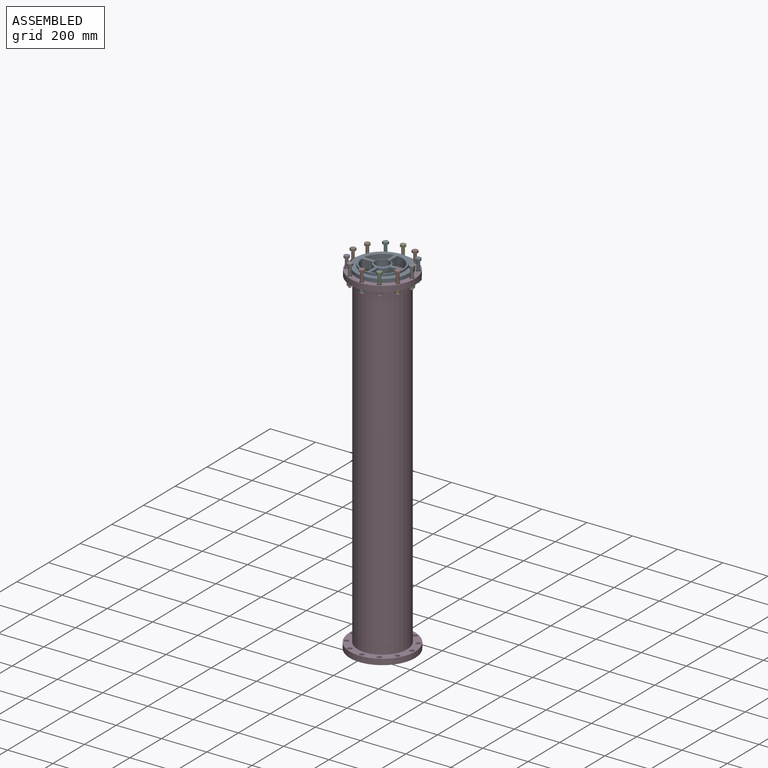
[diagram: assembled view]
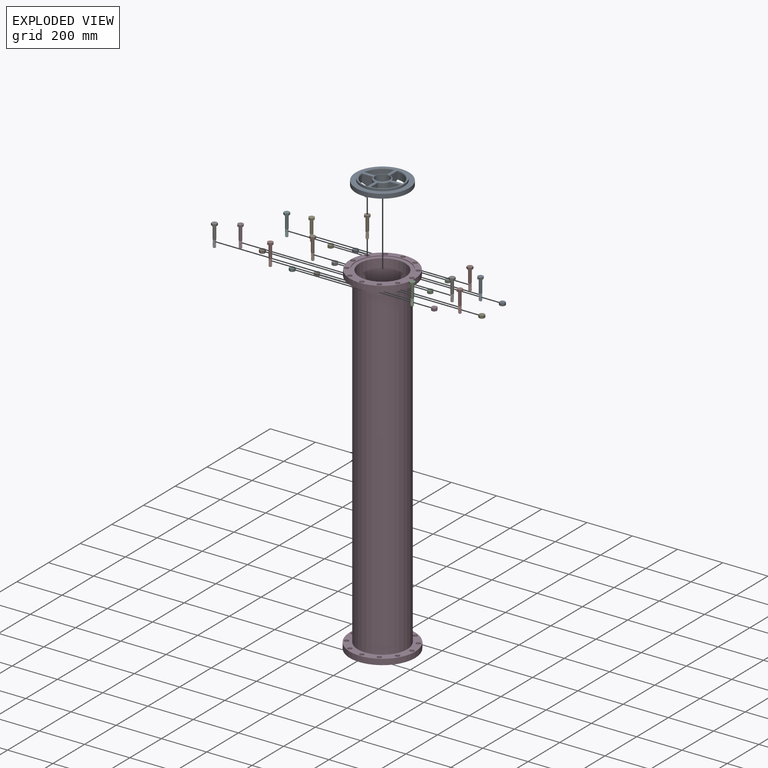
[diagram: exploded view]
GUIDED TOUR — MATED ASSEMBLY (Onshape document aa5c15873a83f293e7da7a4d, AutoMate assembly aa5c15873a83f293e7da7a4d_e7425b5f8948b6b6c07247ae_86c47e28485bf831e5494902_default)

This assembly has 26 components, labeled P0..P25 below (a component is one placed occurrence of a part; the same part can appear more than once), held together by 3 mates. A mate is a constraint between two components; its type names the relative motion it leaves free:
  FASTENED — locks the two components together rigidly (no relative motion).
Axis/direction vectors are unit vectors and 'through' points are millimeter coordinates, both in the assembly's world frame.

MATES
  1. FASTENED "Fastened 2": P13 <-> P3, direction (0.000, 0.000, 1.000) through (367.77, -26.21, 178.77) mm
  2. FASTENED "Fastened 1": P24 <-> P3, direction (0.000, 0.000, -1.000) through (480.50, -91.29, 201.00) mm
  3. FASTENED "Fastened 3": P9 <-> P3, direction (0.000, 0.000, -1.000) through (367.77, -26.21, 245.45) mm

ASSEMBLY ORDER
  1. P24 — the base component [order verified]
  2. P3 [order verified]
  3. P8 [order verified]
  4. P16 [order verified]
  5. P19 [order verified]
  6. P17 [order verified]
  7. P9 [order verified]
  8. P13 [order verified]
  9. P7 [order verified]
  10. P20 [order verified]
  11. P10 [order verified]
  12. P11 [order verified]
  13. P21 [order verified]
  14. P4 [order verified]
  15. P22 [order verified]
  16. P1 [order verified]
  17. P23 [order verified]
  18. P18 [order verified]
  19. P14 [order verified]
  20. P25 [order verified]
  21. P2 [order verified]
  22. P6 [order verified]
  23. P5 [order verified]
  24. P15 [order verified]
  25. P0 [order verified]
  26. P12 [order verified]
(P1, P4, P6, P11, P12, P13, P15, P16, P17, P18, P20, P25 verified with a relaxed clearance tolerance: the source model stores slight part interference there.)
Order-tag legend:
  [order verified] — this step's position reverses a verified removal order: the component was checked to insert without passing through the ones already placed.

Of the 26 components, 1 carries the full construction recipe — the FeatureScript program that regenerates the part's solid from scratch; the rest are supplied as boundary geometry only.
Because this assembly has more than 12 components, the tour below covers the 12 most significant ones individually (every recipe-attached component first, then the largest by part volume), in assembly order; the remaining 14 are summarized together in a grouped section at the end.
Each toured component is shown spotlighted twice — in the assembled view, then in the exploded view, where a leader line traces a displaced component back to its assembled socket (saturated green if recipe-attached, orange if geometry-only; every other component desaturated gray) — followed by its recipe or geometry summary and the mates that hold it.
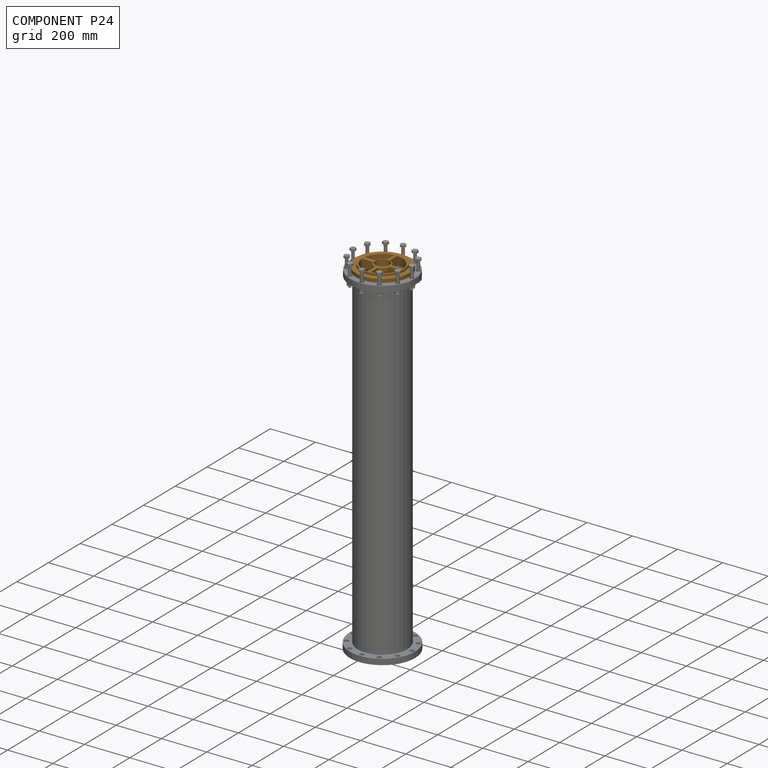
[diagram: component P24 — assembled]
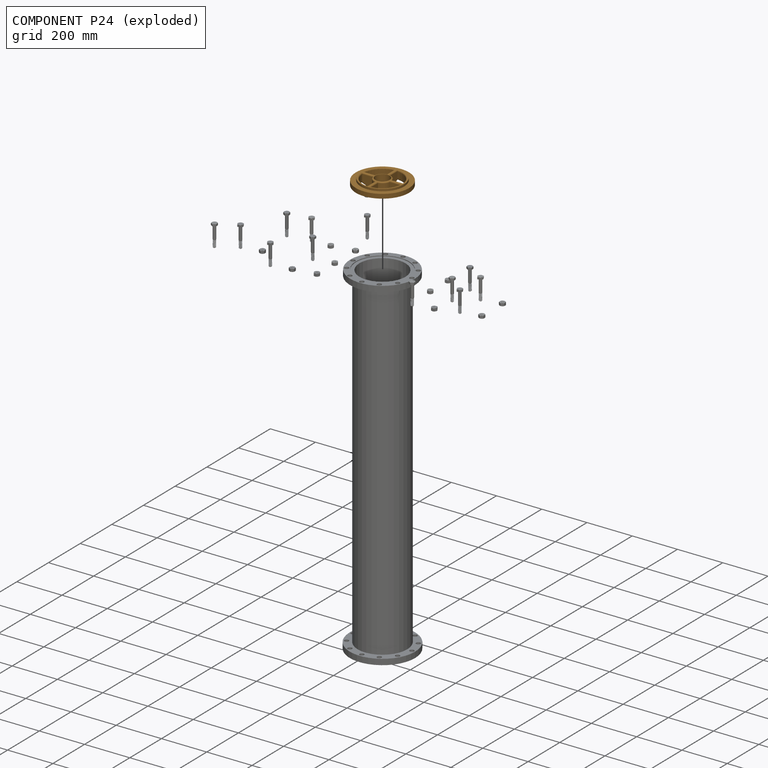
[diagram: component P24 — exploded]
COMPONENT P24 — geometry summary (no construction recipe available for this part):
  bounding box: 238.2 x 238.2 x 66.9 mm
  B-rep topology: 1 solid, 68 faces, 330 edges
  volume: 696616 mm^3 (18% of its bounding box)
  symmetry: 4-fold rotationally symmetric about the x axis; mirror-symmetric across its y mid-plane, z mid-plane
Held by: FASTENED mate "Fastened 1" to P3.
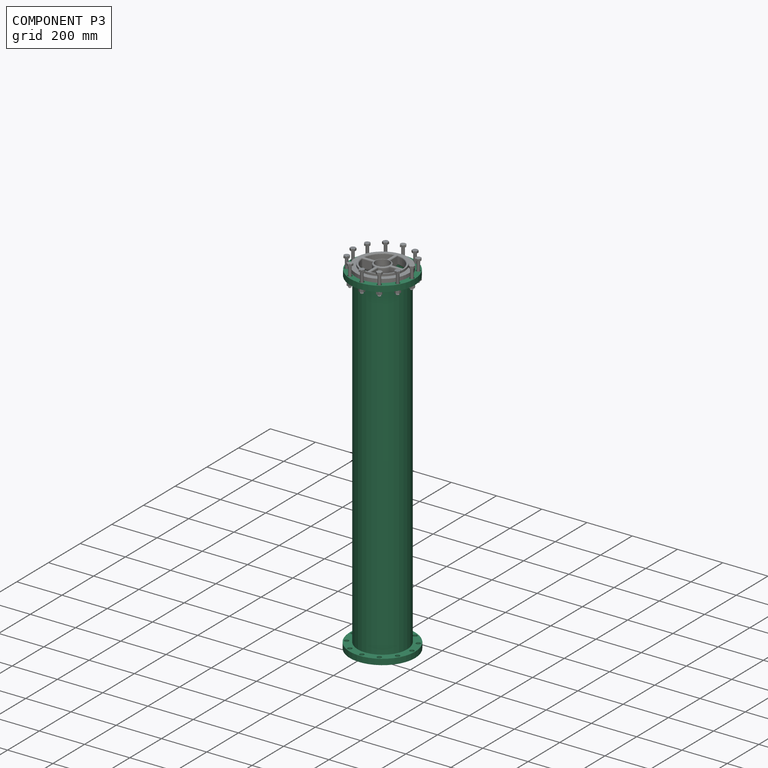
[diagram: component P3 — assembled]
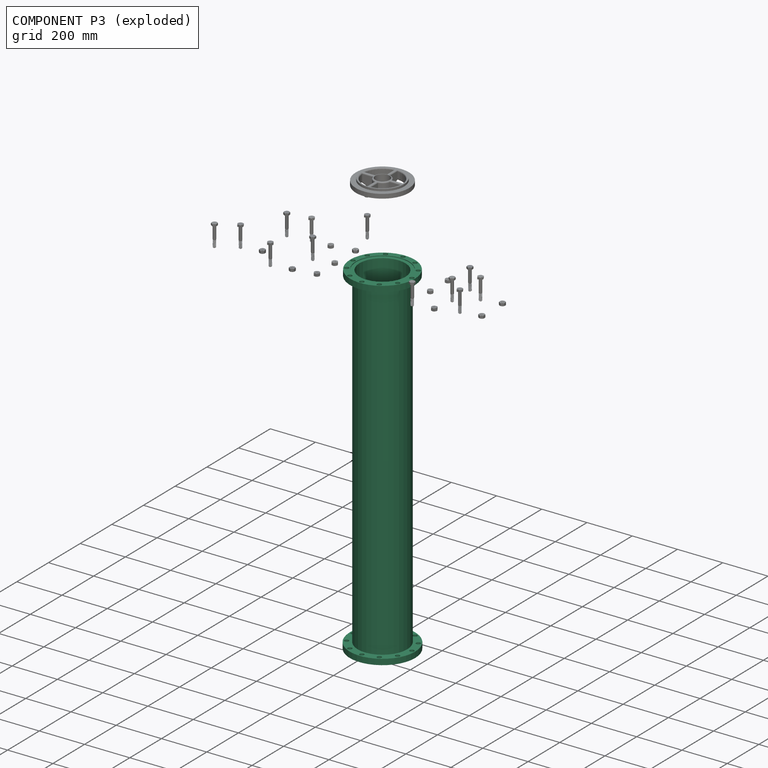
[diagram: component P3 — exploded]
COMPONENT P3 — recipe-attached (CADFS 00617229, mesh-verified: the recipe's output STEP matches this component's geometry to below the mesh-comparison resolution (tessellation chordal tolerance ~2.35 mm)).
Held by: FASTENED mate "Fastened 2" to P13; FASTENED mate "Fastened 1" to P24; FASTENED mate "Fastened 3" to P9.
Construction recipe (FeatureScript — the CAD program that rebuilds this solid; sketch coordinates are in the units given by the * unit suffixes, e.g. mm):

FeatureScript 2155;
import(path : "onshape/std/geometry.fs", version : "2155.0");
import(path : "onshape/std/common.fs", version : "2155.0");
const mm = millimeter;
const VERTEX = EntityType.VERTEX;
const EDGE = EntityType.EDGE;
const FACE = EntityType.FACE;
const BODY = EntityType.BODY;
function v(x, y){return vector(x, y);}
function OD(order){return orderDisambiguation(order);}
function OSD(set){return originalSetDisambiguation(set);}
function TD(topology){return topologyDisambiguation(topology);}
function TDD(query){return trueDependencyDisambiguation(query);}
function sQuery(a, b, c) {return sketchEntityQuery(a, b, c);}

annotation { "Feature Type Name" : "Feature", "Feature Type Description" : "" }
export const myFeature = defineFeature(function(context is Context, id is Id, definition is map)
    precondition{}
    {
        {
            var Q0;
            Q0=qCreatedBy(makeId("Front.planeOp"),FACE);
            var sketch = newSketch(context, id + "F0", { "sketchPlane" : qUnion([Q0])});
            skLineSegment(sketch, "E0", {"start": v(109.6, 0) * mm, "end": v(142.88, 0) * mm});
            skLineSegment(sketch, "E1", {"start": v(142.88, 0) * mm, "end": v(142.88, 25.4) * mm});
            skLineSegment(sketch, "E2", {"start": v(117.48, 25.4) * mm, "end": v(117.48, 22.23) * mm});
            skLineSegment(sketch, "E3", {"start": v(117.48, 22.22) * mm, "end": v(101.6, 22.22) * mm});
            skLineSegment(sketch, "E4", {"start": v(101.6, 22.22) * mm, "end": v(101.6, 15.88) * mm});
            skLineSegment(sketch, "E5", {"start": v(117.48, 25.4) * mm, "end": v(142.88, 25.4) * mm});
            skLineSegment(sketch, "E6.trimOffspring", {"start": v(101.6, 22.23) * mm, "end": v(101.6, 15.88) * mm});
            skLineSegment(sketch, "E7", {"start": v(101.6, 15.88) * mm, "end": v(109.6, 15.88) * mm});
            skLineSegment(sketch, "E8", {"start": v(109.6, 15.88) * mm, "end": v(109.6, 0) * mm});
            skPoint(sketch, "E9.endSnap0", {"position": v(101.6, 19.05) * mm});
            skLineSegment(sketch, "E10.MirrorCS", {"start": v(119.13, -1489.08) * mm, "end": v(119.13, -1485.9) * mm});
            skLineSegment(sketch, "E11.MirrorCS", {"start": v(101.6, -1485.9) * mm, "end": v(101.6, -1479.55) * mm});
            skPoint(sketch, "E12.MirrorP", {"position": v(101.6, -1482.73) * mm});
            skLineSegment(sketch, "E13.MirrorCS", {"start": v(101.6, -1479.55) * mm, "end": v(109.6, -1479.55) * mm});
            skPoint(sketch, "E14.MirrorP", {"position": v(101.6, -1489.08) * mm});
            skLineSegment(sketch, "E15.MirrorCS", {"start": v(119.13, -1489.08) * mm, "end": v(144.53, -1489.08) * mm});
            skLineSegment(sketch, "E16.MirrorCS", {"start": v(119.13, -1485.9) * mm, "end": v(101.6, -1485.9) * mm});
            skLineSegment(sketch, "E17.MirrorCS", {"start": v(109.6, -1463.68) * mm, "end": v(144.53, -1463.68) * mm});
            skLineSegment(sketch, "E18.MirrorCS", {"start": v(109.6, -1479.55) * mm, "end": v(109.6, -1463.68) * mm});
            skLineSegment(sketch, "E19.MirrorCS", {"start": v(144.53, -1463.68) * mm, "end": v(144.53, -1489.08) * mm});
            skLineSegment(sketch, "E20.left", {"start": v(101.6, 15.87) * mm, "end": v(101.6, -1479.55) * mm});
            skLineSegment(sketch, "E20.right", {"start": v(109.6, 15.87) * mm, "end": v(109.6, -1479.55) * mm});
            skLineSegment(sketch, "E21", {"start": v(0, 68.5) * mm, "end": v(0, -49) * mm, "construction": true});
            skSolve(sketch);
        }
        {
            var Q0;
            Q0 = qSketchRegion(id + "F0", true);
            var Q1;
            Q1=sQuery(id+"F0.wireOp",EDGE,"E21");
            revolve(context, id + "F1", {"entities" : qUnion([Q0]), "axis" : qUnion([Q1]), "revolveType" : RevolveType.FULL});
        }
        {
            var Q0;
            Q0=makeQuery(id+"F1.opRevolve","SWEPT_FACE",FACE,{"disambiguationData":[OSD([sQuery(id+"F0.wireOp",EDGE,"E5")])]});
            var sketch = newSketch(context, id + "F2", { "sketchPlane" : qUnion([Q0])});
            skCircle(sketch, "E22", {"center": v(130.18, 0) * mm, "radius": 9.53 * mm});
            skCircle(sketch, "E23.1.0", {"center": v(112.73, 65.09) * mm, "radius": 9.53 * mm});
            skCircle(sketch, "E23.2.0", {"center": v(65.09, 112.73) * mm, "radius": 9.53 * mm});
            skCircle(sketch, "E23.3.0", {"center": v(0, 130.18) * mm, "radius": 9.53 * mm});
            skCircle(sketch, "E23.4.0", {"center": v(-65.09, 112.73) * mm, "radius": 9.53 * mm});
            skCircle(sketch, "E23.5.0", {"center": v(-112.73, 65.09) * mm, "radius": 9.53 * mm});
            skCircle(sketch, "E23.6.0", {"center": v(-130.18, 0) * mm, "radius": 9.53 * mm});
            skCircle(sketch, "E23.7.0", {"center": v(-112.73, -65.09) * mm, "radius": 9.53 * mm});
            skCircle(sketch, "E23.8.0", {"center": v(-65.09, -112.73) * mm, "radius": 9.53 * mm});
            skCircle(sketch, "E23.9.0", {"center": v(0, -130.18) * mm, "radius": 9.53 * mm});
            skCircle(sketch, "E23.10.0", {"center": v(65.09, -112.73) * mm, "radius": 9.53 * mm});
            skCircle(sketch, "E23.11.0", {"center": v(112.73, -65.09) * mm, "radius": 9.53 * mm});
            skPoint(sketch, "E23.center", {"position": v(0, 0) * mm});
            skSolve(sketch);
        }
        {
            var Q0;
            Q0 = qSketchRegion(id + "F2", true);
            extrude(context, id + "F3", {"entities" : qUnion([Q0]), "operationType" : NewBodyOperationType.REMOVE, "endBound" : BoundingType.THROUGH_ALL, "oppositeDirection" : true, "depth" : 25.4 * mm, "offsetDistance" : 25.4 * mm});
        }
    });
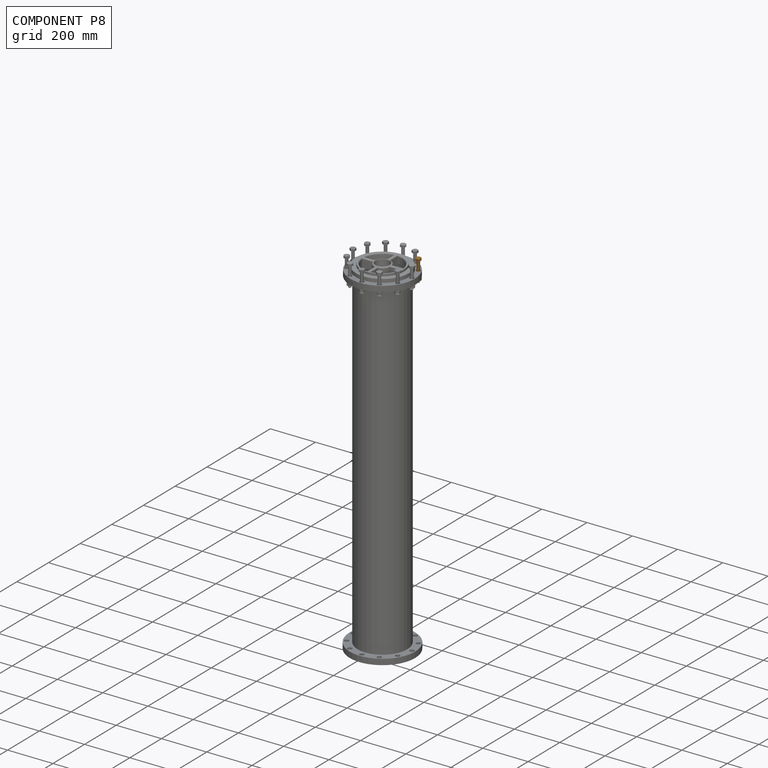
[diagram: component P8 — assembled]
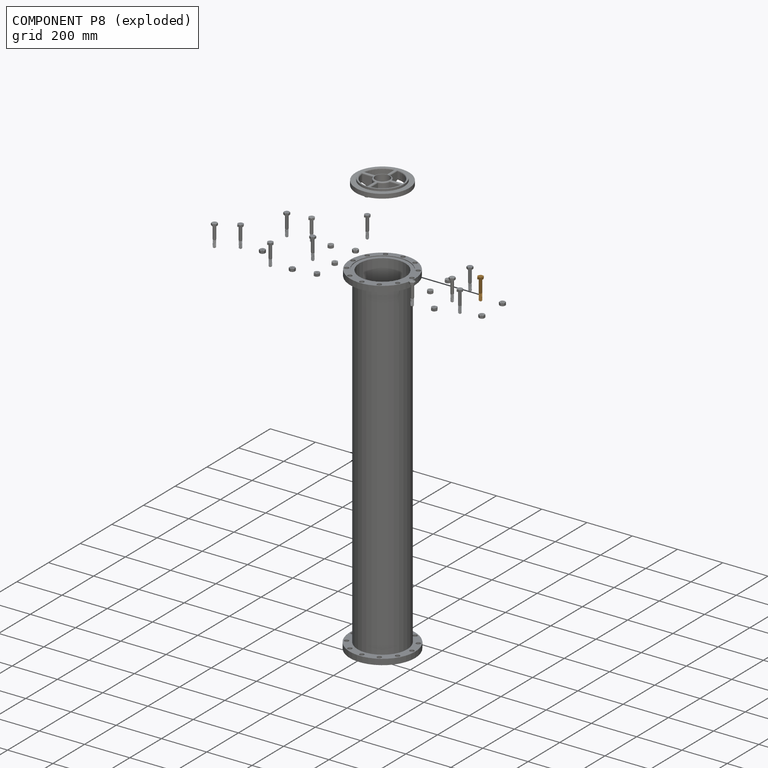
[diagram: component P8 — exploded]
COMPONENT P8 — geometry summary (no construction recipe available for this part):
  bounding box: 98.2 x 25.7 x 25.7 mm
  B-rep topology: 1 solid, 26 faces, 126 edges
  volume: 14707 mm^3 (23% of its bounding box)
  symmetry: 6-fold rotationally symmetric about the z axis
Held by: no mates (free).
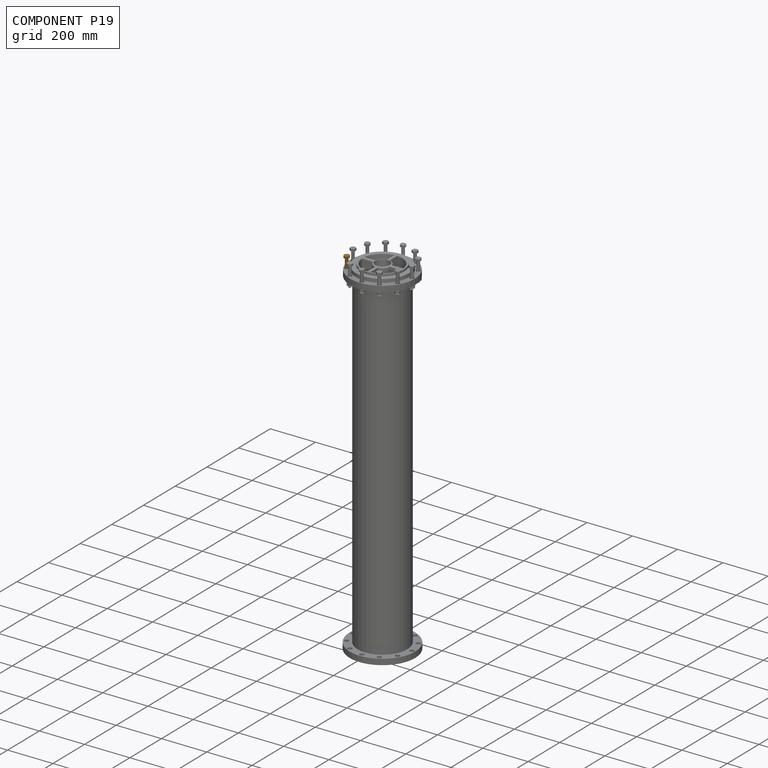
[diagram: component P19 — assembled]
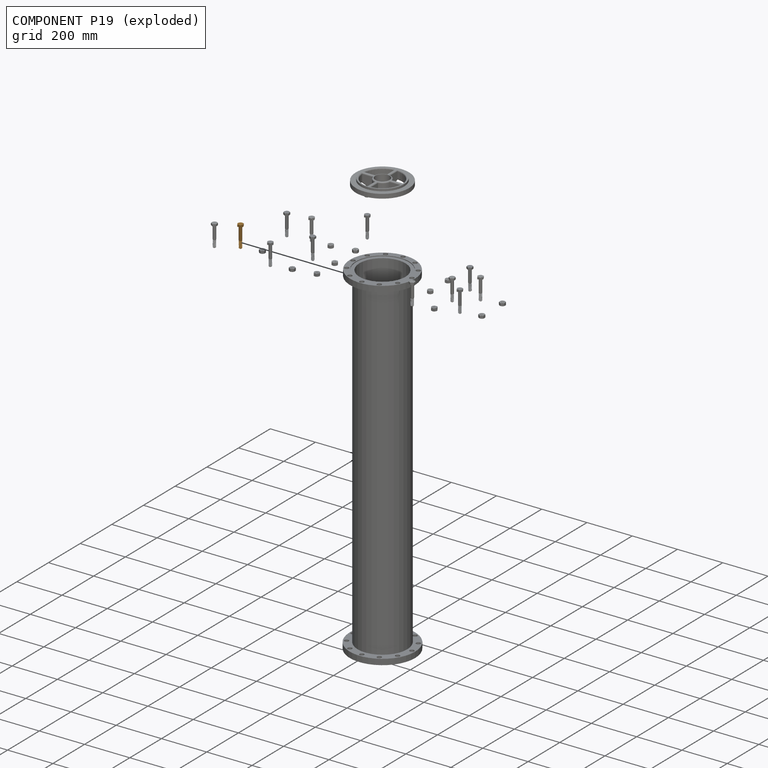
[diagram: component P19 — exploded]
COMPONENT P19 — geometry summary (no construction recipe available for this part):
  bounding box: 98.2 x 25.7 x 25.7 mm
  B-rep topology: 1 solid, 26 faces, 126 edges
  volume: 14707 mm^3 (23% of its bounding box)
  symmetry: 6-fold rotationally symmetric about the z axis
Held by: no mates (free).
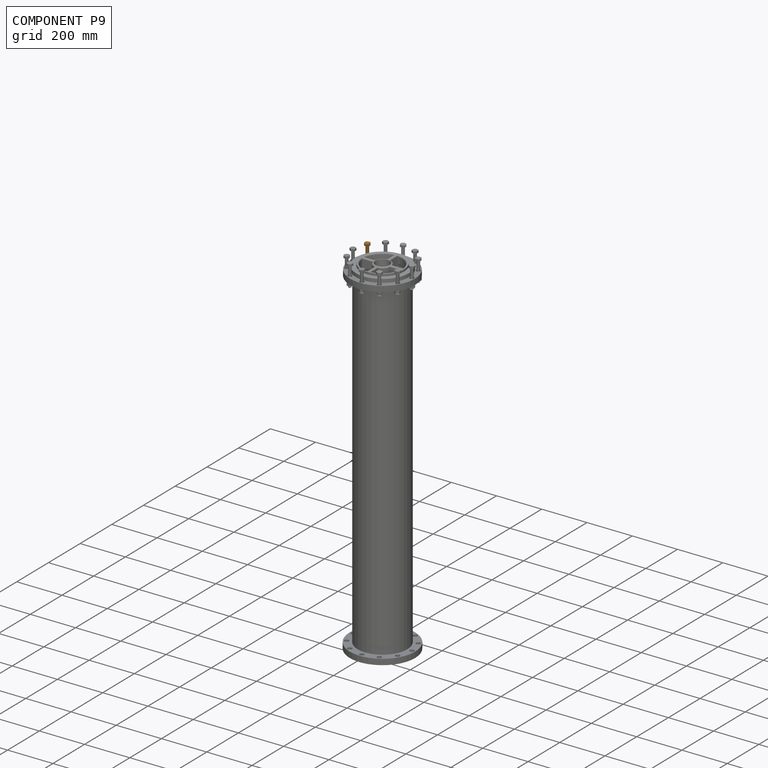
[diagram: component P9 — assembled]
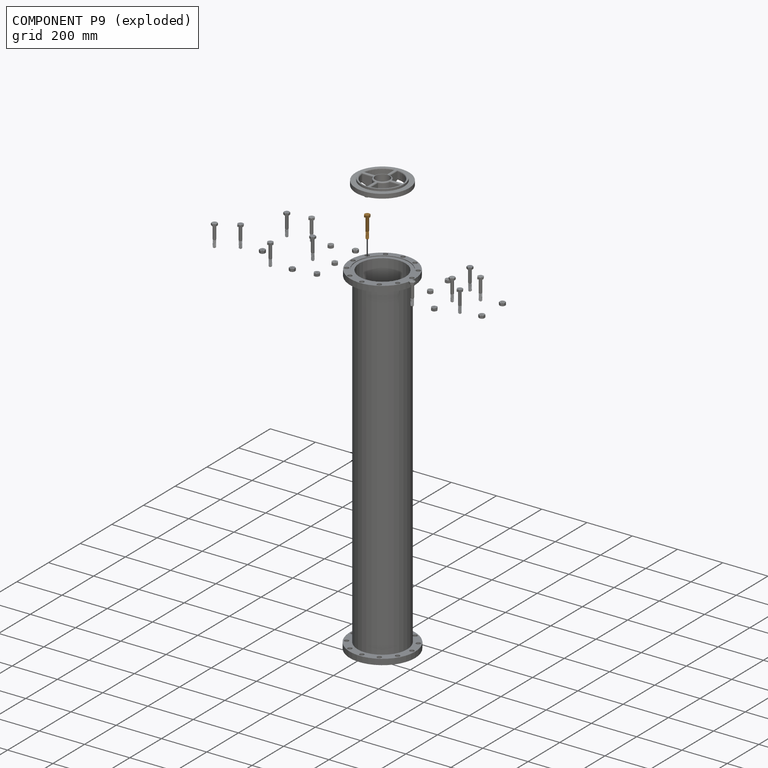
[diagram: component P9 — exploded]
COMPONENT P9 — geometry summary (no construction recipe available for this part):
  bounding box: 98.2 x 25.7 x 25.7 mm
  B-rep topology: 1 solid, 26 faces, 126 edges
  volume: 14707 mm^3 (23% of its bounding box)
  symmetry: 6-fold rotationally symmetric about the z axis
Held by: FASTENED mate "Fastened 3" to P3.
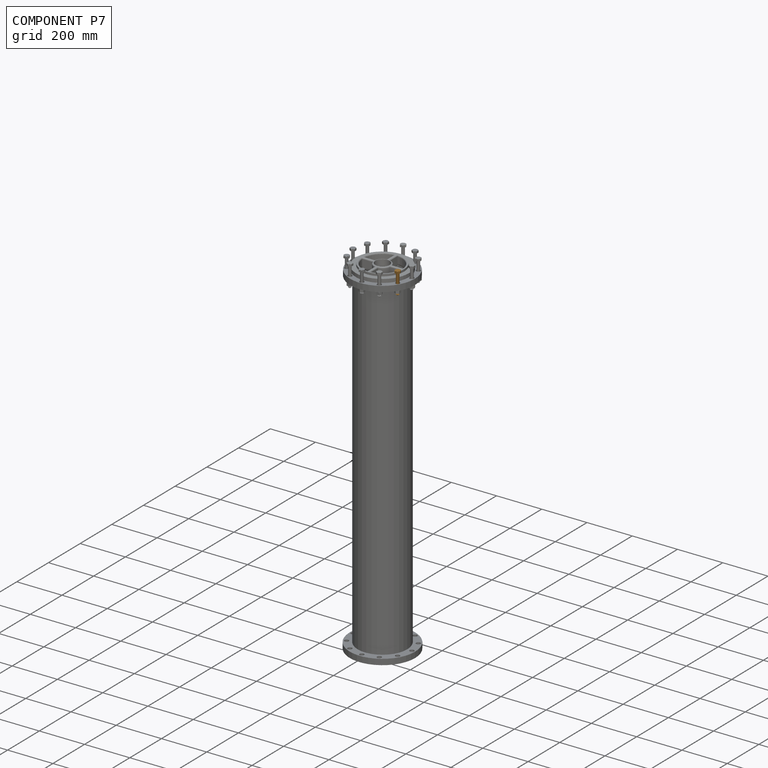
[diagram: component P7 — assembled]
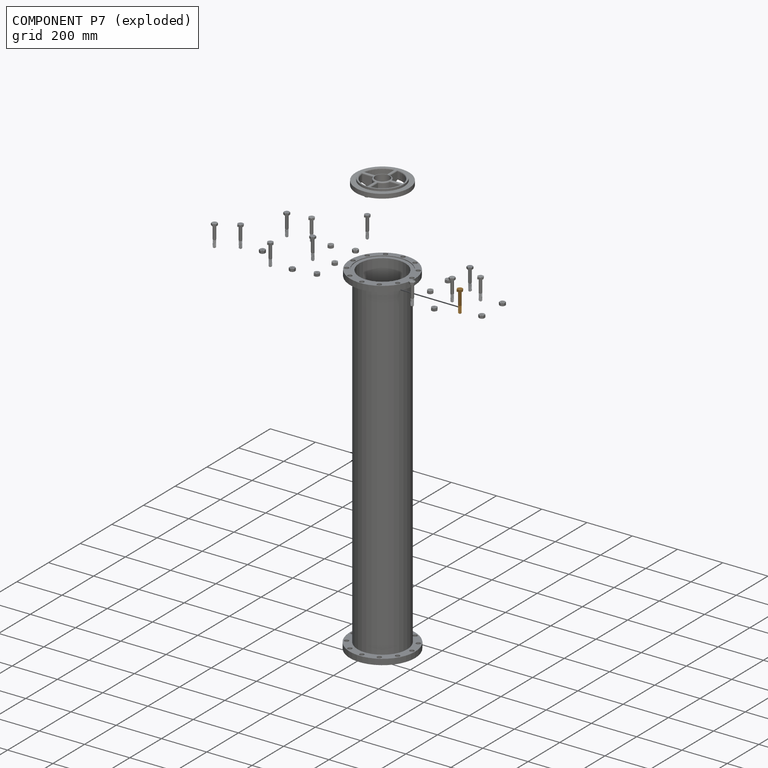
[diagram: component P7 — exploded]
COMPONENT P7 — geometry summary (no construction recipe available for this part):
  bounding box: 98.2 x 25.7 x 25.7 mm
  B-rep topology: 1 solid, 26 faces, 126 edges
  volume: 14707 mm^3 (23% of its bounding box)
  symmetry: 6-fold rotationally symmetric about the z axis
Held by: no mates (free).
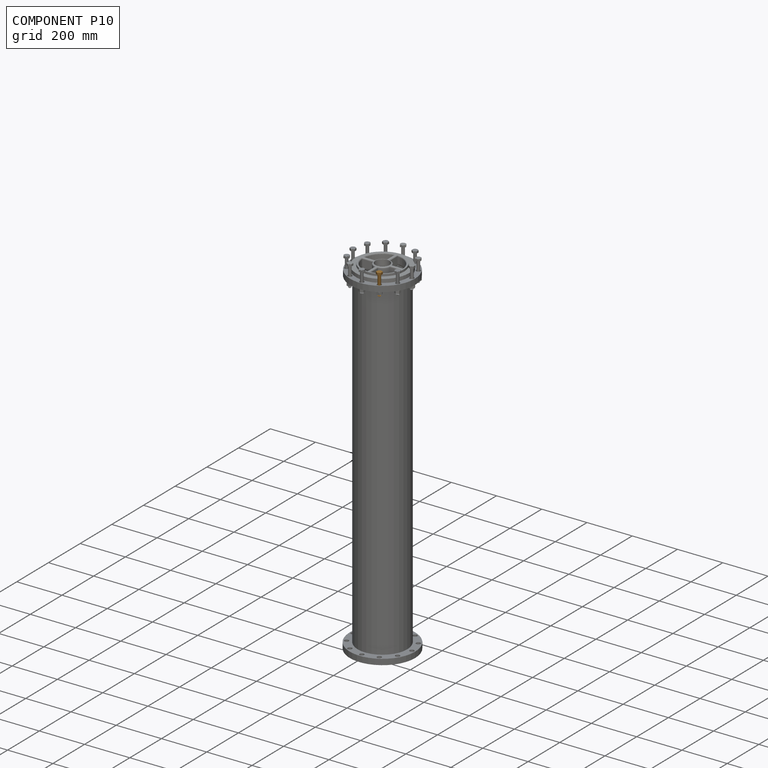
[diagram: component P10 — assembled]
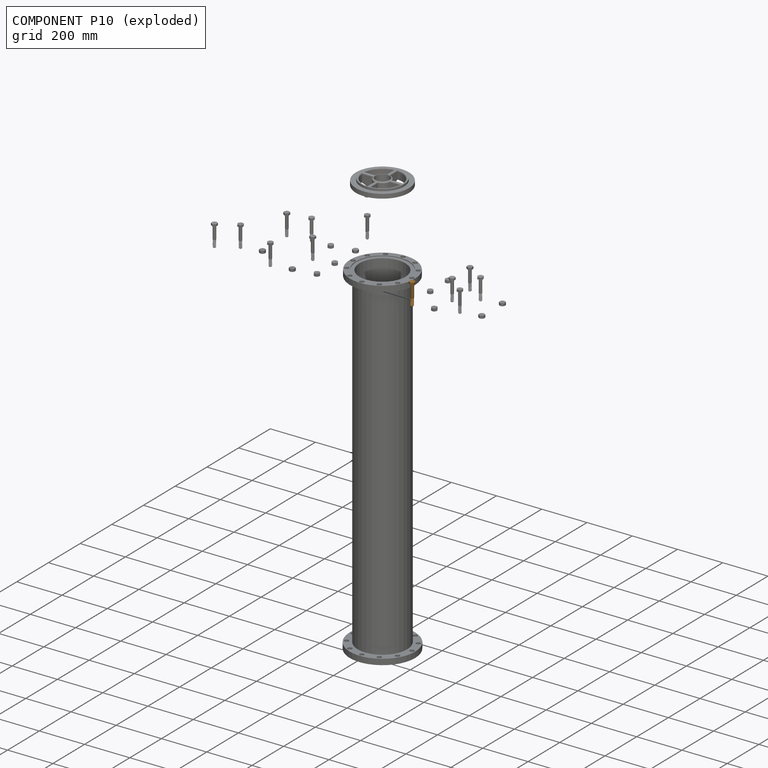
[diagram: component P10 — exploded]
COMPONENT P10 — geometry summary (no construction recipe available for this part):
  bounding box: 98.2 x 25.7 x 25.7 mm
  B-rep topology: 1 solid, 26 faces, 126 edges
  volume: 14707 mm^3 (23% of its bounding box)
  symmetry: 6-fold rotationally symmetric about the z axis
Held by: no mates (free).
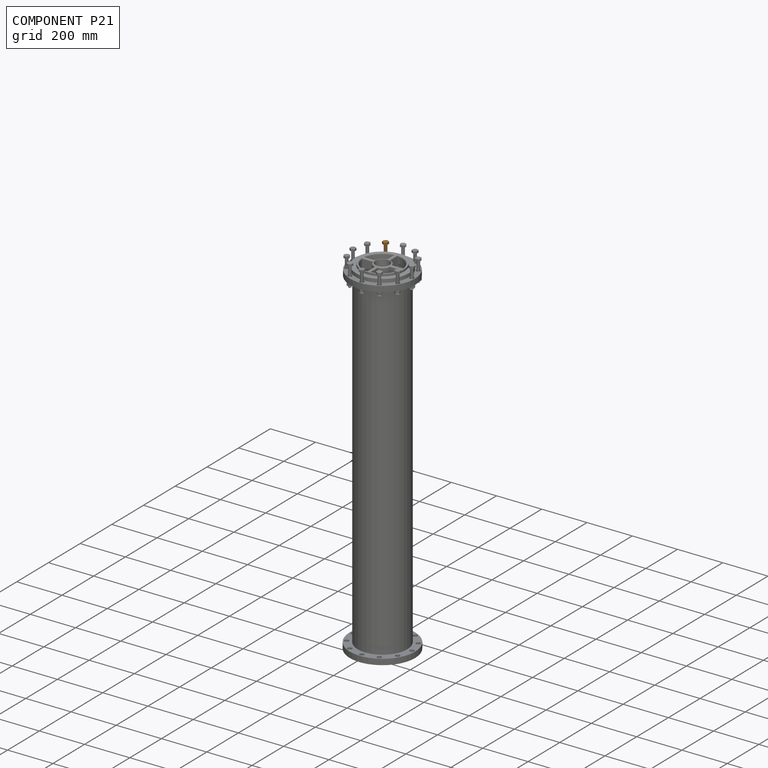
[diagram: component P21 — assembled]
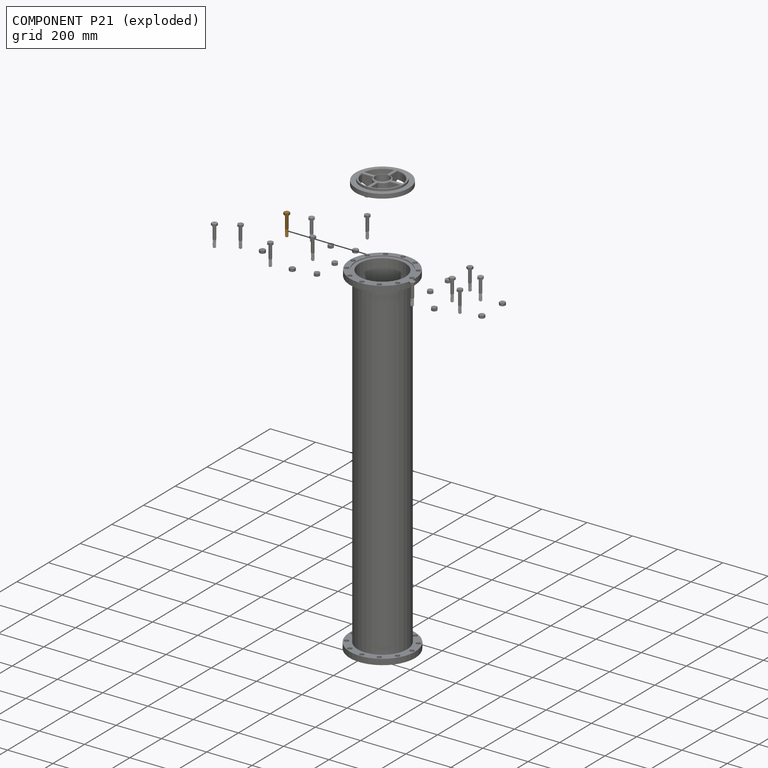
[diagram: component P21 — exploded]
COMPONENT P21 — geometry summary (no construction recipe available for this part):
  bounding box: 98.2 x 25.7 x 25.7 mm
  B-rep topology: 1 solid, 26 faces, 126 edges
  volume: 14707 mm^3 (23% of its bounding box)
  symmetry: 6-fold rotationally symmetric about the z axis
Held by: no mates (free).
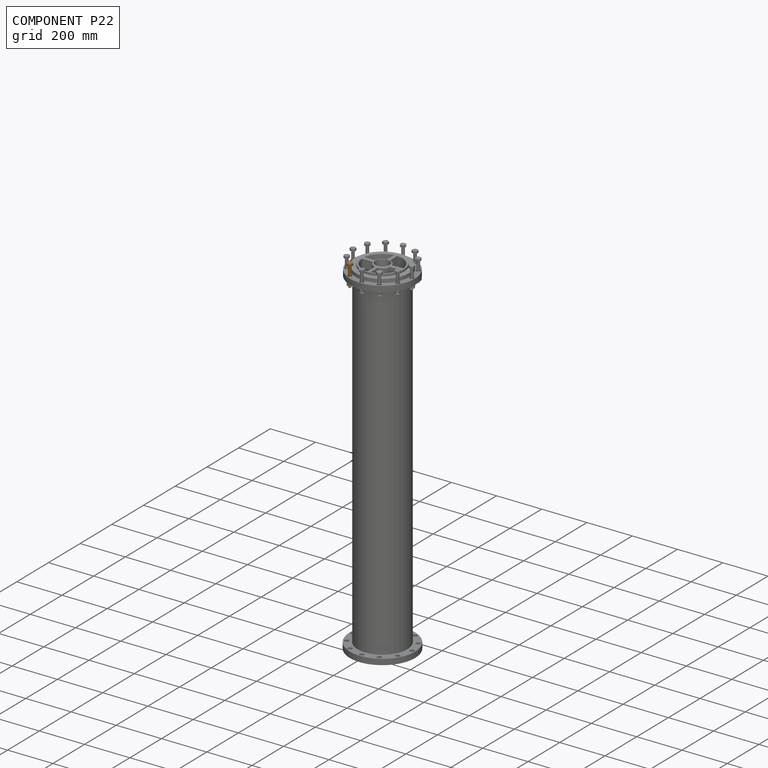
[diagram: component P22 — assembled]
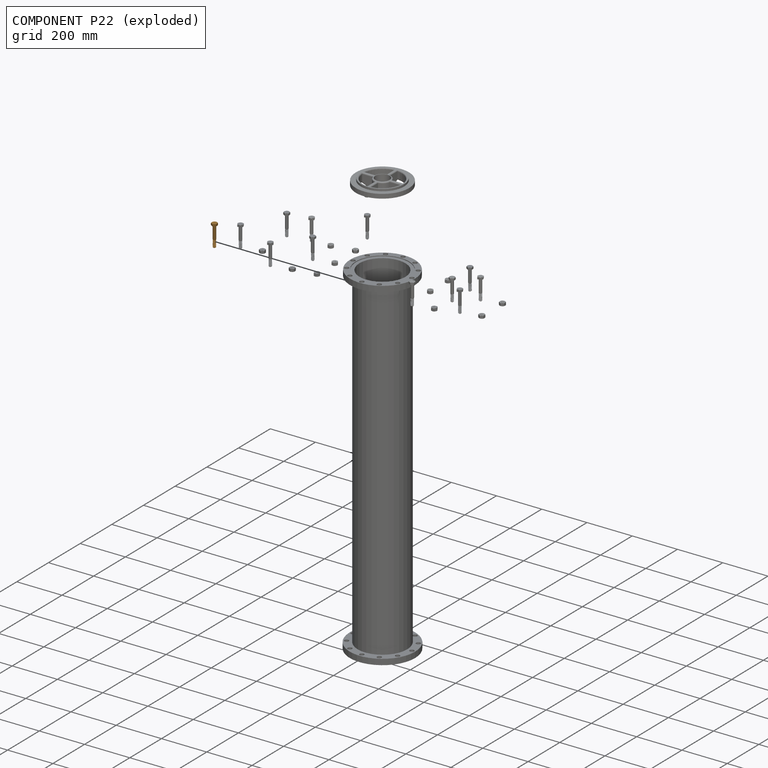
[diagram: component P22 — exploded]
COMPONENT P22 — geometry summary (no construction recipe available for this part):
  bounding box: 98.2 x 25.7 x 25.7 mm
  B-rep topology: 1 solid, 26 faces, 126 edges
  volume: 14707 mm^3 (23% of its bounding box)
  symmetry: 6-fold rotationally symmetric about the z axis
Held by: no mates (free).
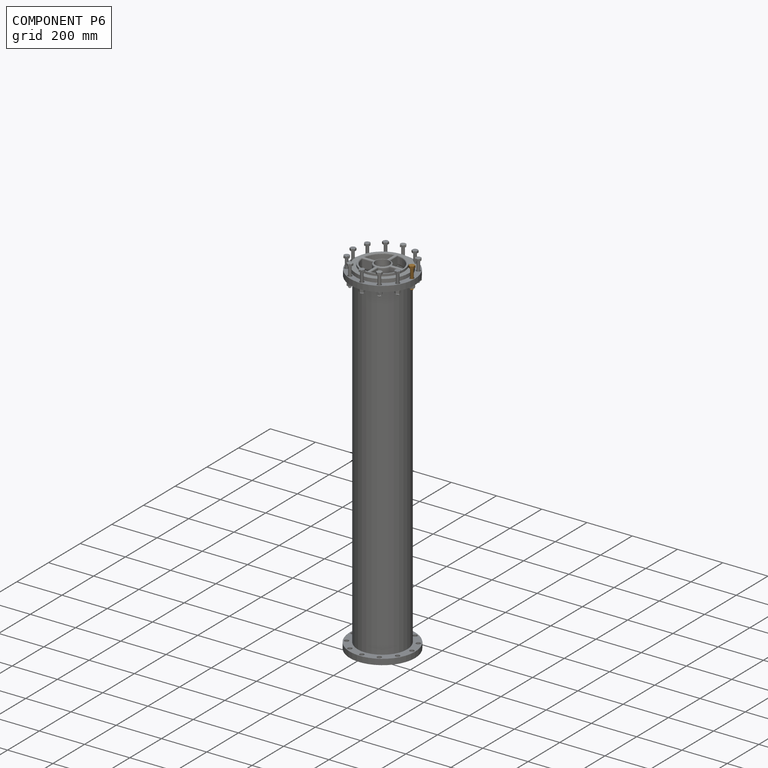
[diagram: component P6 — assembled]
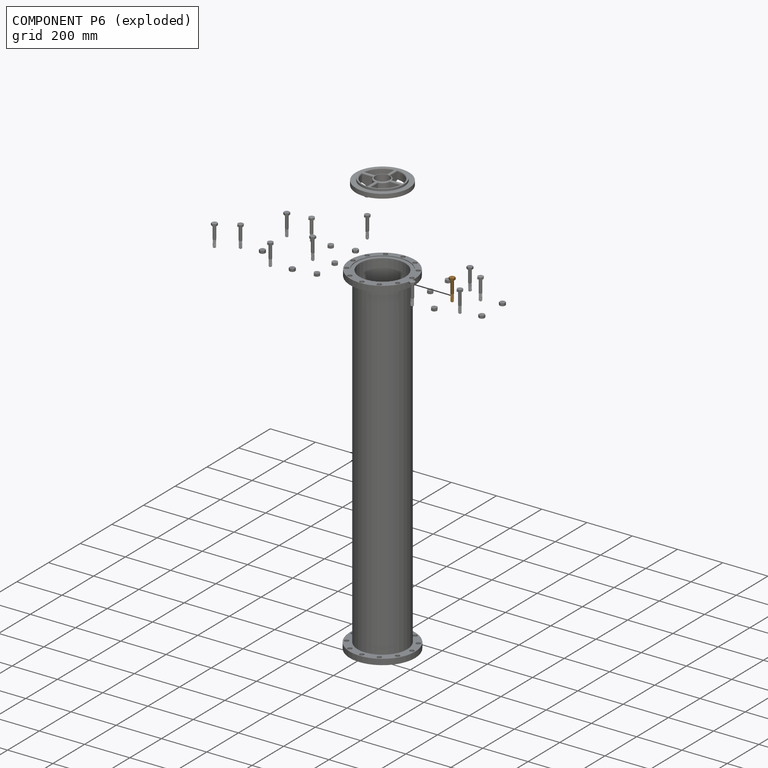
[diagram: component P6 — exploded]
COMPONENT P6 — geometry summary (no construction recipe available for this part):
  bounding box: 98.2 x 25.7 x 25.7 mm
  B-rep topology: 1 solid, 26 faces, 126 edges
  volume: 14707 mm^3 (23% of its bounding box)
  symmetry: 6-fold rotationally symmetric about the z axis
Held by: no mates (free).
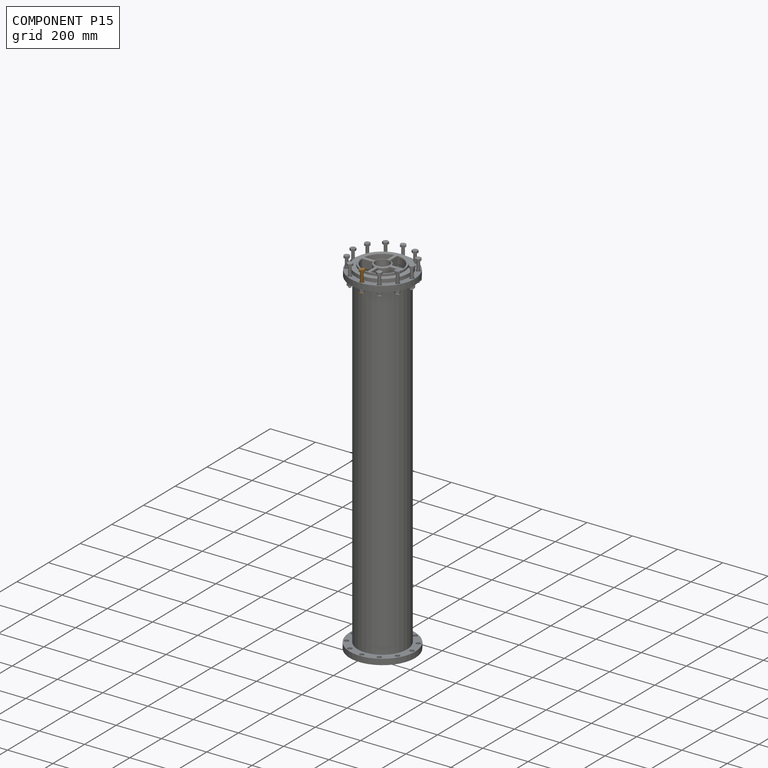
[diagram: component P15 — assembled]
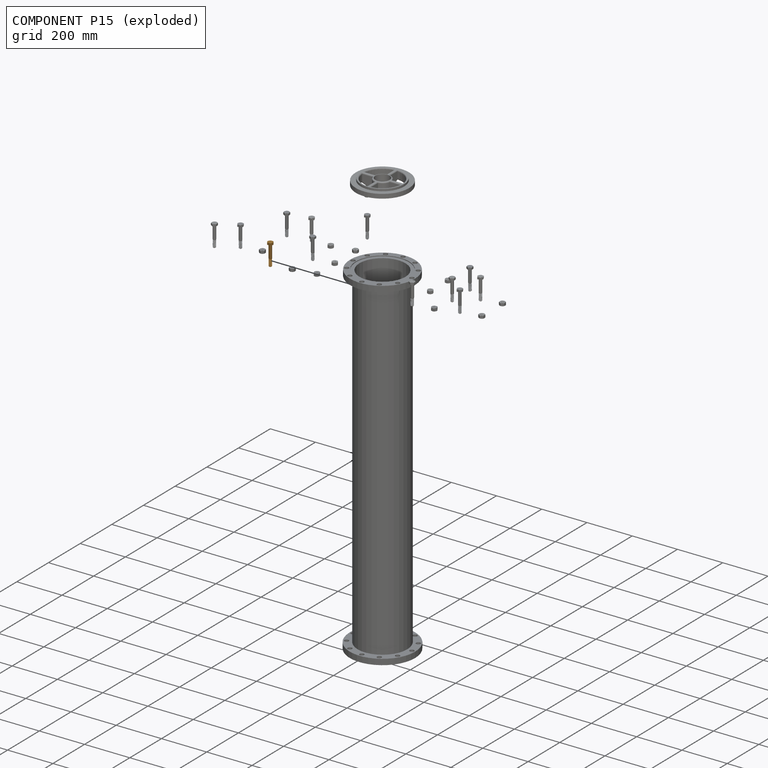
[diagram: component P15 — exploded]
COMPONENT P15 — geometry summary (no construction recipe available for this part):
  bounding box: 98.2 x 25.7 x 25.7 mm
  B-rep topology: 1 solid, 26 faces, 126 edges
  volume: 14707 mm^3 (23% of its bounding box)
  symmetry: 6-fold rotationally symmetric about the z axis
Held by: no mates (free).
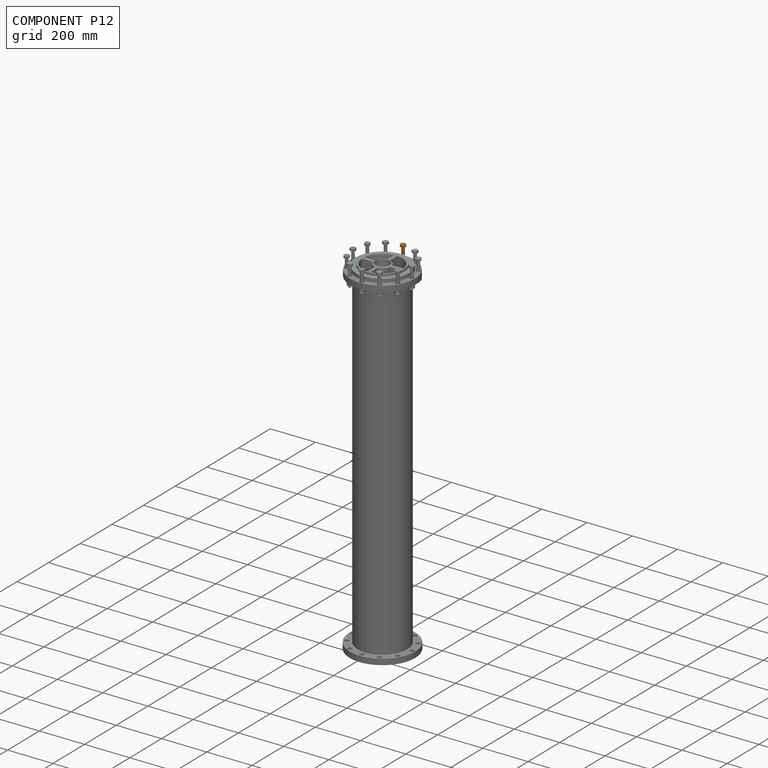
[diagram: component P12 — assembled]
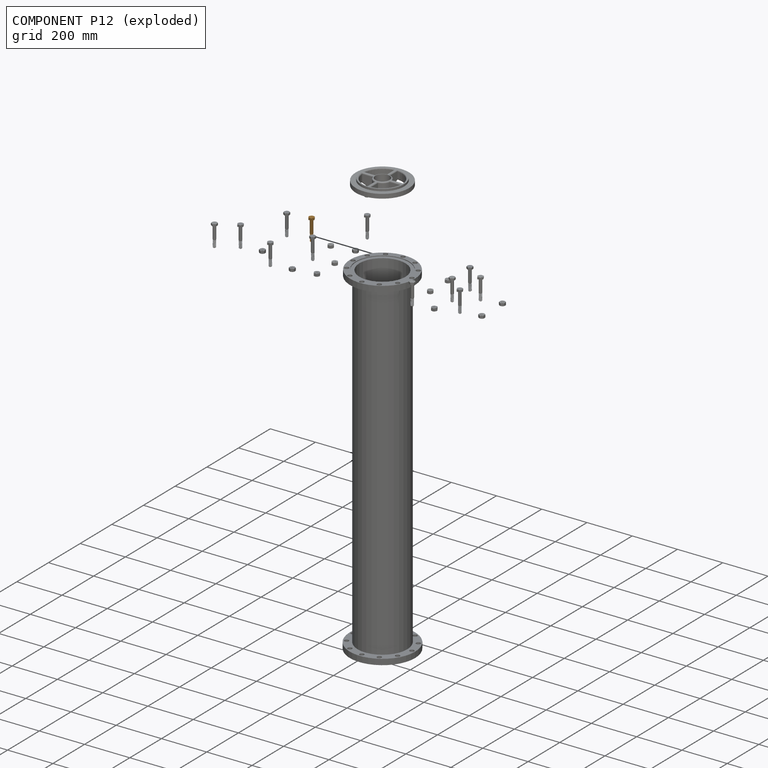
[diagram: component P12 — exploded]
COMPONENT P12 — geometry summary (no construction recipe available for this part):
  bounding box: 98.2 x 25.7 x 25.7 mm
  B-rep topology: 1 solid, 26 faces, 126 edges
  volume: 14707 mm^3 (23% of its bounding box)
  symmetry: 6-fold rotationally symmetric about the z axis
Held by: no mates (free).
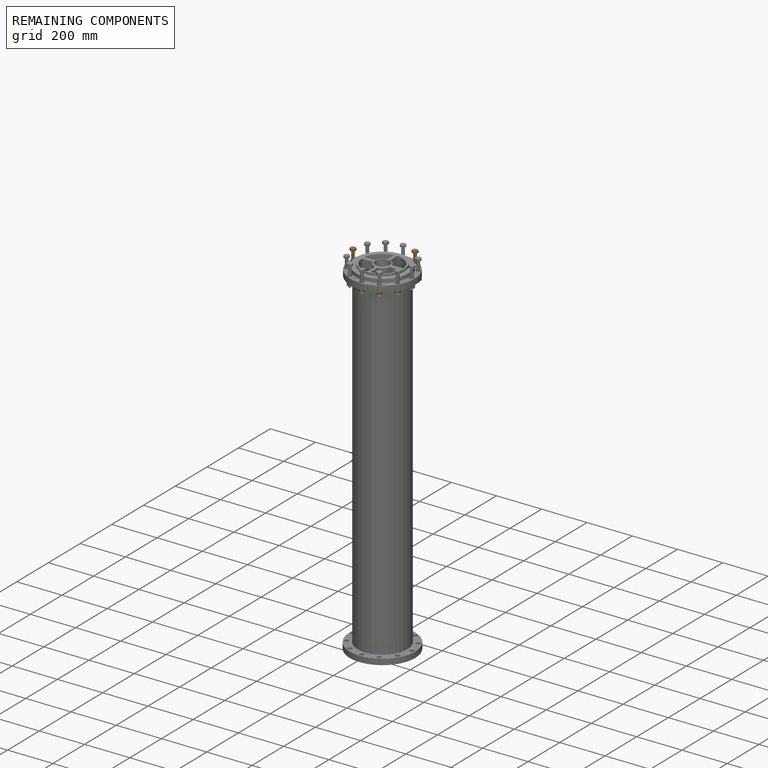
[diagram: remaining components — assembled]
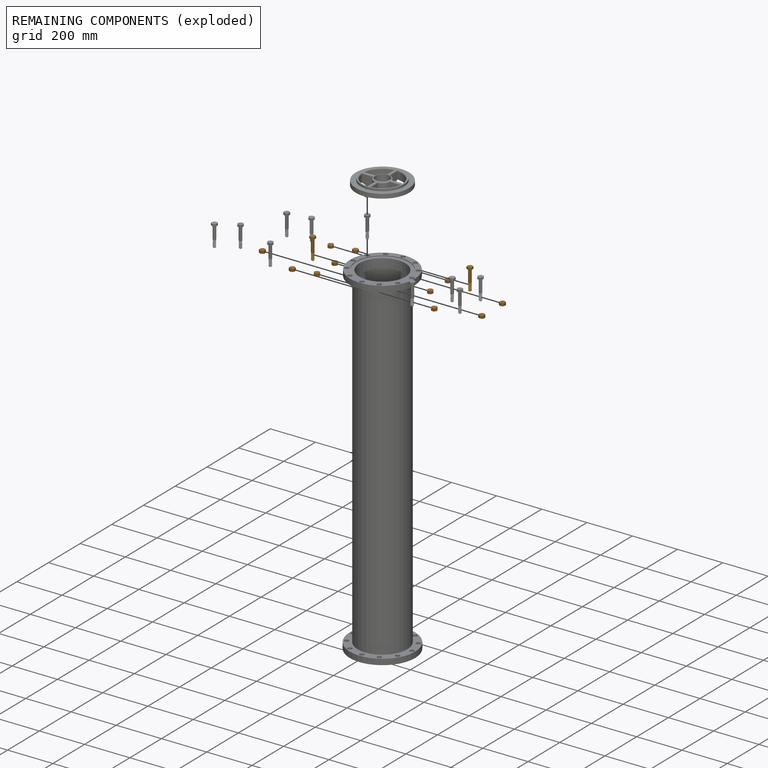
[diagram: remaining components — exploded]
REMAINING COMPONENTS (grouped) — the 14 components below fall outside the per-component tour by the significance rule stated above; both spotlight views highlight the whole group.
  P16: bounding box 26.1 x 26.1 x 13.3 mm, volume 4452 mm^3. Held by: no mates (free).
  P17: bounding box 26.1 x 26.1 x 13.3 mm, volume 4452 mm^3. Held by: no mates (free).
  P13: bounding box 26.1 x 26.1 x 13.3 mm, volume 4452 mm^3. Held by: FASTENED mate "Fastened 2" to P3.
  P20: bounding box 26.1 x 26.1 x 13.3 mm, volume 4452 mm^3. Held by: no mates (free).
  P11: bounding box 26.1 x 26.1 x 13.3 mm, volume 4452 mm^3. Held by: no mates (free).
  P4: bounding box 26.1 x 26.1 x 13.3 mm, volume 4452 mm^3. Held by: no mates (free).
  P1: bounding box 26.1 x 26.1 x 13.3 mm, volume 4452 mm^3. Held by: no mates (free).
  P23: bounding box 98.2 x 25.7 x 25.7 mm, volume 14707 mm^3. Held by: no mates (free).
  P18: bounding box 26.1 x 26.1 x 13.3 mm, volume 4452 mm^3. Held by: no mates (free).
  P14: bounding box 26.1 x 26.1 x 13.3 mm, volume 4452 mm^3. Held by: no mates (free).
  P25: bounding box 98.2 x 25.7 x 25.7 mm, volume 14707 mm^3. Held by: no mates (free).
  P2: bounding box 26.1 x 26.1 x 13.3 mm, volume 4452 mm^3. Held by: no mates (free).
  P5: bounding box 26.1 x 26.1 x 13.3 mm, volume 4452 mm^3. Held by: no mates (free).
  P0: bounding box 26.1 x 26.1 x 13.3 mm, volume 4452 mm^3. Held by: no mates (free).
PROVENANCE & LICENSES
Assembly (occurrences, transforms, mates, per-part STEP geometry): AutoMate dataset, Zenodo record 7776208, CC0.
Construction recipes: CADFS (HuggingFace VladPyatov/CADFS, CC-BY-4.0, layered over the ABC dataset), FeatureScript reconstruction programs keyed by ABC model id.
Join: ABC meta listings map ABC model id -> Onshape documentId; within a shared document, parts are matched by geometric signature (bounding-box dims + volume at 0.1% relative tolerance, exact B-rep face/solid counts).
Verification: 1 of this assembly's 26 components carries a recipe attachment, and every attachment is mesh-verified: the CADFS STEP and the AutoMate member STEP were compared as meshes in their shared local frame (symmetric sampled-point-to-mesh distance); worst across the 1 attachment: below the mesh-comparison resolution (tessellation chordal tolerance ~2.35 mm) on a 1568 mm part.
Renders: orthographic iso camera (az 35 / el 25); the floor grid conveys scale (grid pitch printed in each image; no ruler). In the exploded view each component is displaced by its stored offset vector: the offsets alone carry the explosion direction (mate normal/axis signs are not orientation cues and do not encode it), and separation distances are assigned per mate-chain, not proportionally to assembly-order depth.
